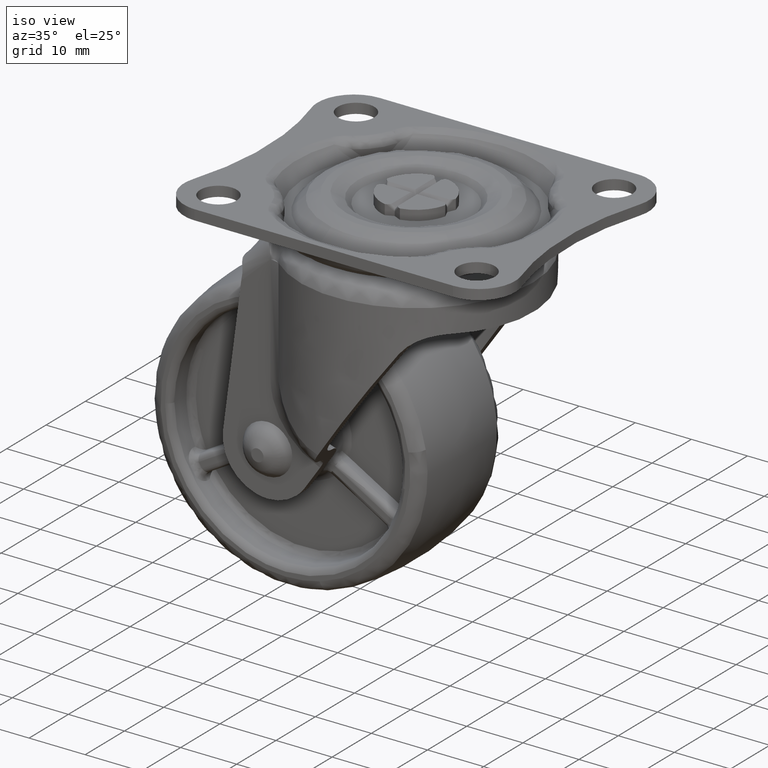
[diagram: clean part render]
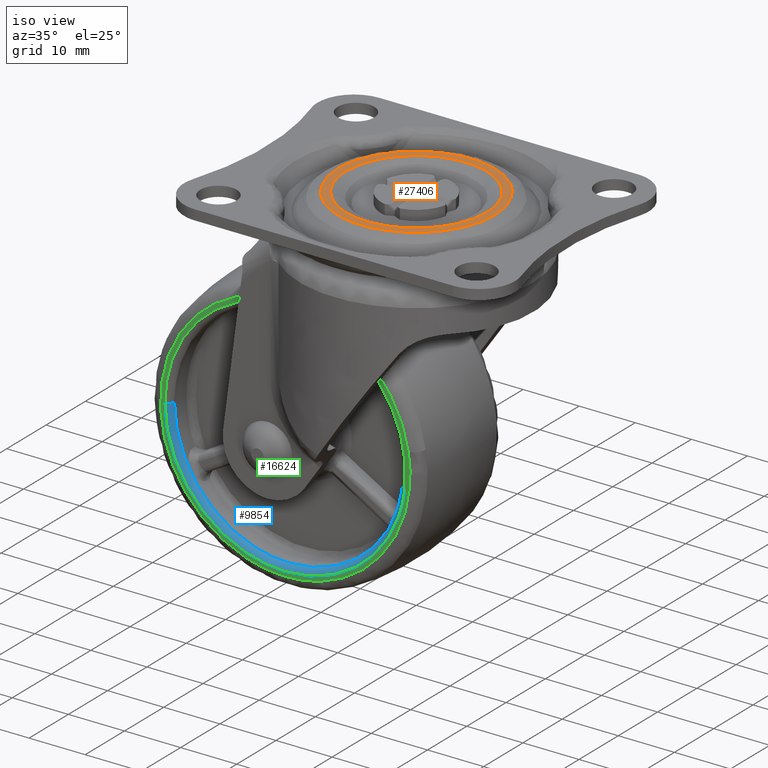
[diagram: same view with three faces highlighted in distinct colors, each labeled with its STEP entity id]
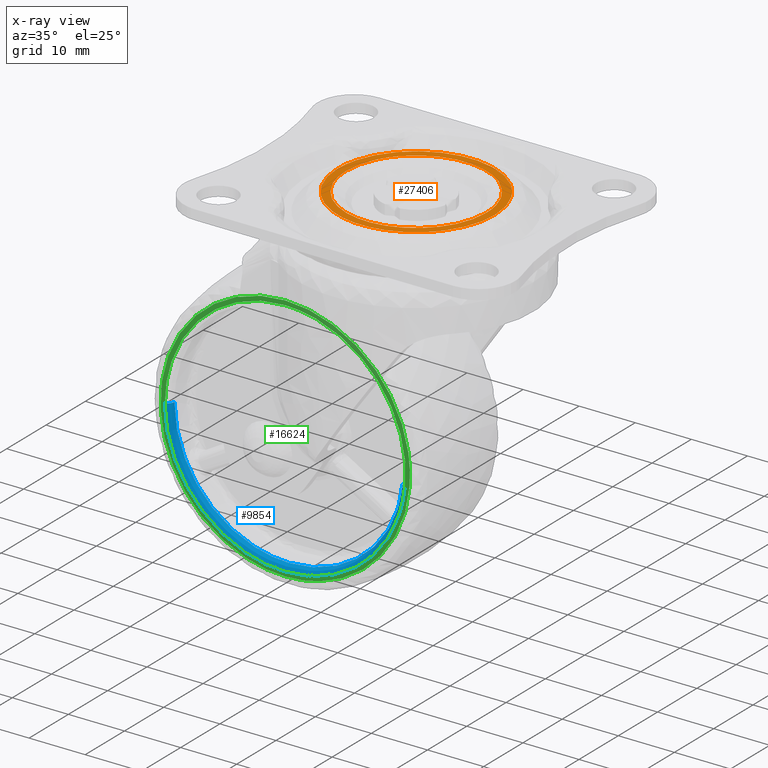
[diagram: x-ray of the same camera — body ghosted, the three highlighted faces saturated]
A machine part, iso view with three faces highlighted in distinct colors.
The next image is the same camera in x-ray (body ghosted, the three faces saturated) — at least one of them is partly hidden behind the body in this view.
Their STEP definitions:

[orange] entity #27406 — the highlighted face is a freeform B-spline surface patch.
#20250=CARTESIAN_POINT('',(-14.007359312880700,0.0,0.0));
#20251=VERTEX_POINT('',#20250);
#20252=CARTESIAN_POINT('',(11.036504954898600,-8.625640458779156,-5.326172E-016));
#20253=VERTEX_POINT('',#20252);
#20254=CARTESIAN_POINT('',(-14.007359312880700,0.0,0.0));
#20255=CARTESIAN_POINT('',(-14.007359312880700,-14.007359312880700,0.0));
#20256=CARTESIAN_POINT('',(0.0,-14.007359312880700,0.0));
#20257=CARTESIAN_POINT('',(6.830393320163392,-14.007359312880697,0.0));
#20258=CARTESIAN_POINT('',(11.036504954898600,-8.625640458779156,-5.326172E-016));
#20266=(BOUNDED_CURVE()B_SPLINE_CURVE(2,(#20254,#20255,#20256,#20257,#20258),.UNSPECIFIED.,.F.,.U.)B_SPLINE_CURVE_WITH_KNOTS((3,2,3),(0.0,0.250000000000000,0.393432082114475),.UNSPECIFIED.)CURVE()GEOMETRIC_REPRESENTATION_ITEM()RATIONAL_B_SPLINE_CURVE((1.0,0.707106781186548,1.0,0.831958863153504,0.856737647417219))REPRESENTATION_ITEM(''));
#20267=EDGE_CURVE('',#20251,#20253,#20266,.T.);
#20269=CARTESIAN_POINT('',(9.842270599605191,9.966735896073367,-5.096540E-016));
#20270=VERTEX_POINT('',#20269);
#20271=CARTESIAN_POINT('',(9.842270599605191,9.966735896073367,-5.096540E-016));
#20272=CARTESIAN_POINT('',(5.750549479752312,14.007359312880700,0.0));
#20273=CARTESIAN_POINT('',(0.0,14.007359312880700,0.0));
#20274=CARTESIAN_POINT('',(-14.007359312880700,14.007359312880700,0.0));
#20275=CARTESIAN_POINT('',(-14.007359312880700,0.0,0.0));
#20283=(BOUNDED_CURVE()B_SPLINE_CURVE(2,(#20271,#20272,#20273,#20274,#20275),.UNSPECIFIED.,.F.,.U.)B_SPLINE_CURVE_WITH_KNOTS((3,2,3),(0.625948062568013,0.750000000000000,1.0),.UNSPECIFIED.)CURVE()GEOMETRIC_REPRESENTATION_ITEM()RATIONAL_B_SPLINE_CURVE((0.853561814883004,0.854664114982001,1.0,0.707106781186548,1.0))REPRESENTATION_ITEM(''));
#20284=EDGE_CURVE('',#20270,#20251,#20283,.T.);
#20336=CARTESIAN_POINT('',(14.007359312880700,0.0,0.0));
#20337=VERTEX_POINT('',#20336);
#20338=CARTESIAN_POINT('',(11.036504954898600,-8.625640458779156,-5.326172E-016));
#20339=CARTESIAN_POINT('',(14.007359312880702,-4.824432999405993,0.0));
#20340=CARTESIAN_POINT('',(14.007359312880700,0.0,0.0));
#20348=(BOUNDED_CURVE()B_SPLINE_CURVE(2,(#20338,#20339,#20340),.UNSPECIFIED.,.F.,.U.)B_SPLINE_CURVE_WITH_KNOTS((3,3),(0.393432082114475,0.500000000000000),.UNSPECIFIED.)CURVE()GEOMETRIC_REPRESENTATION_ITEM()RATIONAL_B_SPLINE_CURVE((0.856737647417219,0.875147918033044,1.0))REPRESENTATION_ITEM(''));
#20349=EDGE_CURVE('',#20253,#20337,#20348,.T.);
#20355=CARTESIAN_POINT('',(14.007359312880700,0.0,0.0));
#20356=CARTESIAN_POINT('',(14.007359312880697,5.853661099694910,0.0));
#20357=CARTESIAN_POINT('',(9.842270599605191,9.966735896073367,-5.096540E-016));
#20365=(BOUNDED_CURVE()B_SPLINE_CURVE(2,(#20355,#20356,#20357),.UNSPECIFIED.,.F.,.U.)B_SPLINE_CURVE_WITH_KNOTS((3,3),(0.500000000000000,0.625948062568013),.UNSPECIFIED.)CURVE()GEOMETRIC_REPRESENTATION_ITEM()RATIONAL_B_SPLINE_CURVE((1.0,0.852442666204546,0.853561814883004))REPRESENTATION_ITEM(''));
#20366=EDGE_CURVE('',#20337,#20270,#20365,.T.);
#20406=CARTESIAN_POINT('',(7.723675670354493,9.882441218438832,-4.714846E-016));
#20407=VERTEX_POINT('',#20406);
#20408=CARTESIAN_POINT('',(12.542639687119300,0.0,0.0));
#20409=VERTEX_POINT('',#20408);
#20410=CARTESIAN_POINT('',(7.723675670354493,9.882441218438832,-4.714846E-016));
#20411=CARTESIAN_POINT('',(12.542639687119301,6.116153689051350,0.0));
#20412=CARTESIAN_POINT('',(12.542639687119300,0.0,0.0));
#20420=(BOUNDED_CURVE()B_SPLINE_CURVE(2,(#20410,#20411,#20412),.UNSPECIFIED.,.F.,.U.)B_SPLINE_CURVE_WITH_KNOTS((3,3),(0.356567917886601,0.500000000000000),.UNSPECIFIED.)CURVE()GEOMETRIC_REPRESENTATION_ITEM()RATIONAL_B_SPLINE_CURVE((0.856737647416847,0.831958863154765,1.0))REPRESENTATION_ITEM(''));
#20421=EDGE_CURVE('',#20407,#20409,#20420,.T.);
#20441=CARTESIAN_POINT('',(-8.924535623545339,8.813085397138408,-5.113113E-016));
#20442=VERTEX_POINT('',#20441);
#20456=CARTESIAN_POINT('',(-12.542639687119300,0.0,0.0));
#20457=VERTEX_POINT('',#20456);
#20458=CARTESIAN_POINT('',(-12.542639687119300,0.0,0.0));
#20459=CARTESIAN_POINT('',(-12.542639687119300,5.149226811169228,0.0));
#20460=CARTESIAN_POINT('',(-8.924535623545339,8.813085397138408,-5.113113E-016));
#20468=(BOUNDED_CURVE()B_SPLINE_CURVE(2,(#20458,#20459,#20460),.UNSPECIFIED.,.F.,.U.)B_SPLINE_CURVE_WITH_KNOTS((3,3),(0.0,0.124051937432107),.UNSPECIFIED.)CURVE()GEOMETRIC_REPRESENTATION_ITEM()RATIONAL_B_SPLINE_CURVE((1.0,0.854664114981861,0.853561814883002))REPRESENTATION_ITEM(''));
#20469=EDGE_CURVE('',#20457,#20442,#20468,.T.);
#20471=CARTESIAN_POINT('',(12.542639687119300,0.0,0.0));
#20472=CARTESIAN_POINT('',(12.542639687119300,-12.542639687119300,0.0));
#20473=CARTESIAN_POINT('',(0.0,-12.542639687119300,0.0));
#20474=CARTESIAN_POINT('',(-12.542639687119300,-12.542639687119300,0.0));
#20475=CARTESIAN_POINT('',(-12.542639687119300,0.0,0.0));
#20483=(BOUNDED_CURVE()B_SPLINE_CURVE(2,(#20471,#20472,#20473,#20474,#20475),.UNSPECIFIED.,.F.,.U.)B_SPLINE_CURVE_WITH_KNOTS((3,2,3),(0.500000000000000,0.750000000000000,1.0),.UNSPECIFIED.)CURVE()GEOMETRIC_REPRESENTATION_ITEM()RATIONAL_B_SPLINE_CURVE((1.0,0.707106781186548,1.0,0.707106781186548,1.0))REPRESENTATION_ITEM(''));
#20484=EDGE_CURVE('',#20409,#20457,#20483,.T.);
#20506=CARTESIAN_POINT('',(-8.924535623545339,8.813085397138408,-5.113113E-016));
#20507=CARTESIAN_POINT('',(-5.241556269380681,12.542639687119298,0.0));
#20508=CARTESIAN_POINT('',(0.0,12.542639687119300,0.0));
#20509=CARTESIAN_POINT('',(4.319952351850633,12.542639687119305,0.0));
#20510=CARTESIAN_POINT('',(7.723675670354493,9.882441218438832,-4.714846E-016));
#20518=(BOUNDED_CURVE()B_SPLINE_CURVE(2,(#20506,#20507,#20508,#20509,#20510),.UNSPECIFIED.,.F.,.U.)B_SPLINE_CURVE_WITH_KNOTS((3,2,3),(0.124051937432107,0.250000000000000,0.356567917886601),.UNSPECIFIED.)CURVE()GEOMETRIC_REPRESENTATION_ITEM()RATIONAL_B_SPLINE_CURVE((0.853561814883002,0.852442666204687,1.0,0.875147918031783,0.856737647416847))REPRESENTATION_ITEM(''));
#20519=EDGE_CURVE('',#20442,#20407,#20518,.T.);
#27389=CARTESIAN_POINT('',(-15.406694716921660,15.406565031206160,0.0));
#27390=CARTESIAN_POINT('',(15.406695217863859,15.406565031206160,0.0));
#27391=CARTESIAN_POINT('',(-15.406694716921660,-15.406675793393561,0.0));
#27392=CARTESIAN_POINT('',(15.406695217863859,-15.406675793393561,0.0));
#27393=B_SPLINE_SURFACE_WITH_KNOTS('',1,1,((#27389,#27391),(#27390,#27392)),.UNSPECIFIED.,.F.,.F.,.U.,(2,2),(2,2),(0.0,30.813389934785519),(0.0,30.813240824599720),.UNSPECIFIED.);
#27394=ORIENTED_EDGE('',*,*,#20349,.T.);
#27395=ORIENTED_EDGE('',*,*,#20366,.T.);
#27396=ORIENTED_EDGE('',*,*,#20284,.T.);
#27397=ORIENTED_EDGE('',*,*,#20267,.T.);
#27398=EDGE_LOOP('',(#27394,#27395,#27396,#27397));
#27399=FACE_OUTER_BOUND('',#27398,.T.);
#27400=ORIENTED_EDGE('',*,*,#20484,.T.);
#27401=ORIENTED_EDGE('',*,*,#20469,.T.);
#27402=ORIENTED_EDGE('',*,*,#20519,.T.);
#27403=ORIENTED_EDGE('',*,*,#20421,.T.);
#27404=EDGE_LOOP('',(#27400,#27401,#27402,#27403));
#27405=FACE_BOUND('',#27404,.T.);
#27406=ADVANCED_FACE('',(#27399,#27405),#27393,.F.);

[blue] entity #9854 — the highlighted face is a freeform B-spline surface patch.
#6905=CARTESIAN_POINT('',(-20.450001000000000,-9.500000002797471,1.775593E-015));
#6906=VERTEX_POINT('',#6905);
#6920=CARTESIAN_POINT('',(0.0,-9.500000000000000,-20.450001000000000));
#6921=VERTEX_POINT('',#6920);
#6922=CARTESIAN_POINT('',(-20.450001000000000,-9.500000002797471,1.775593E-015));
#6923=CARTESIAN_POINT('',(-20.450001000000004,-9.500000000000000,-20.450001000000004));
#6924=CARTESIAN_POINT('',(0.0,-9.500000000000000,-20.450001000000000));
#6932=(BOUNDED_CURVE()B_SPLINE_CURVE(2,(#6922,#6923,#6924),.UNSPECIFIED.,.F.,.U.)B_SPLINE_CURVE_WITH_KNOTS((3,3),(0.750000000000000,1.0),.UNSPECIFIED.)CURVE()GEOMETRIC_REPRESENTATION_ITEM()RATIONAL_B_SPLINE_CURVE((1.0,0.707106781186547,1.0))REPRESENTATION_ITEM(''));
#6933=EDGE_CURVE('',#6906,#6921,#6932,.T.);
#6935=CARTESIAN_POINT('',(20.313224006459929,-9.500000002786987,-2.361243605259952));
#6936=VERTEX_POINT('',#6935);
#6937=CARTESIAN_POINT('',(0.0,-9.500000000000000,-20.450001000000000));
#6938=CARTESIAN_POINT('',(18.210556172299707,-9.499999999999998,-20.450001000000000));
#6939=CARTESIAN_POINT('',(20.313224006459929,-9.500000002786987,-2.361243605259952));
#6947=(BOUNDED_CURVE()B_SPLINE_CURVE(2,(#6937,#6938,#6939),.UNSPECIFIED.,.F.,.U.)B_SPLINE_CURVE_WITH_KNOTS((3,3),(0.0,0.229999999999050),.UNSPECIFIED.)CURVE()GEOMETRIC_REPRESENTATION_ITEM()RATIONAL_B_SPLINE_CURVE((1.0,0.730538238692737,0.956886118188789))REPRESENTATION_ITEM(''));
#6948=EDGE_CURVE('',#6921,#6936,#6947,.T.);
#9730=CARTESIAN_POINT('',(21.306535645217171,-10.500000000000000,-2.476707834554091));
#9731=VERTEX_POINT('',#9730);
#9749=CARTESIAN_POINT('',(-21.450000997091809,-10.500000000000000,1.775626E-015));
#9750=VERTEX_POINT('',#9749);
#9764=CARTESIAN_POINT('',(-21.450000997091813,-10.500000000000000,1.775626E-015));
#9765=CARTESIAN_POINT('',(-20.450001005594945,-10.499999994183634,1.769682E-015));
#9766=CARTESIAN_POINT('',(-20.450001000000000,-9.500000002797471,1.775593E-015));
#9774=(BOUNDED_CURVE()B_SPLINE_CURVE(2,(#9764,#9765,#9766),.UNSPECIFIED.,.F.,.U.)B_SPLINE_CURVE_WITH_KNOTS((3,3),(-1.726807293572388,-0.285995339730375),.UNSPECIFIED.)CURVE()GEOMETRIC_REPRESENTATION_ITEM()RATIONAL_B_SPLINE_CURVE((0.882788774073280,0.622603439819938,0.878205637037286))REPRESENTATION_ITEM(''));
#9775=EDGE_CURVE('',#9750,#6906,#9774,.T.);
#9781=CARTESIAN_POINT('',(21.306535645217174,-10.500000000000000,-2.476707834554091));
#9782=CARTESIAN_POINT('',(20.313224012003246,-10.499999999937105,-2.361243605846488));
#9783=CARTESIAN_POINT('',(20.313224006459933,-9.500000002786987,-2.361243605259951));
#9791=(BOUNDED_CURVE()B_SPLINE_CURVE(2,(#9781,#9782,#9783),.UNSPECIFIED.,.F.,.U.)B_SPLINE_CURVE_WITH_KNOTS((3,3),(-1.726807299449346,-0.285995339709065),.UNSPECIFIED.)CURVE()GEOMETRIC_REPRESENTATION_ITEM()RATIONAL_B_SPLINE_CURVE((0.844728325236312,0.595760587700139,0.840342783004999))REPRESENTATION_ITEM(''));
#9792=EDGE_CURVE('',#9731,#6936,#9791,.T.);
#9797=CARTESIAN_POINT('',(-21.519352224661372,-10.497592305322154,1.317637E-015));
#9798=CARTESIAN_POINT('',(-21.519352224661372,-10.497592305322151,-21.519352224661358));
#9799=CARTESIAN_POINT('',(-2.635274E-015,-10.497592305322154,-21.519352224661372));
#9800=CARTESIAN_POINT('',(19.162804563232772,-10.497592305322152,-21.519352224661365));
#9801=CARTESIAN_POINT('',(21.375423023871779,-10.497592305322154,-2.484715420238383));
#9802=CARTESIAN_POINT('',(-20.372261629428667,-10.577336442433600,1.247400E-015));
#9803=CARTESIAN_POINT('',(-20.372261629428664,-10.577336442433596,-20.372261629428664));
#9804=CARTESIAN_POINT('',(-2.494800E-015,-10.577336442433600,-20.372261629428667));
#9805=CARTESIAN_POINT('',(18.141329908081413,-10.577336442433598,-20.372261629428671));
#9806=CARTESIAN_POINT('',(20.236004584886235,-10.577336442433602,-2.352267488691505));
#9807=CARTESIAN_POINT('',(-20.452434697207831,-9.430275746446746,1.252309E-015));
#9808=CARTESIAN_POINT('',(-20.452434697207821,-9.430275746446750,-20.452434697207821));
#9809=CARTESIAN_POINT('',(-2.504618E-015,-9.430275746446746,-20.452434697207831));
#9810=CARTESIAN_POINT('',(18.212723359568585,-9.430275746446750,-20.452434697207824));
#9811=CARTESIAN_POINT('',(20.315641426228375,-9.430275746446746,-2.361524610175412));
#9819=(BOUNDED_SURFACE()B_SPLINE_SURFACE(2,2,((#9797,#9802,#9807),(#9798,#9803,#9808),(#9799,#9804,#9809),(#9800,#9805,#9810),(#9801,#9806,#9811)),.UNSPECIFIED.,.F.,.F.,.U.)B_SPLINE_SURFACE_WITH_KNOTS((3,2,3),(3,3),(0.0,35.654430179753490,68.456505945126693),(0.0,1.822371195840735),.UNSPECIFIED.)GEOMETRIC_REPRESENTATION_ITEM()RATIONAL_B_SPLINE_SURFACE(((0.910068454623733,0.595552818763237,0.905027202754720),(0.643515575608403,0.421119436702248,0.639950872226155),(0.910068454623733,0.595552818763237,0.905027202754720),(0.664839805929630,0.435074107267127,0.661156978668440),(0.870831870832676,0.569876224923859,0.866007966900915)))REPRESENTATION_ITEM('')SURFACE());
#9820=CARTESIAN_POINT('',(0.0,-10.500000000000000,-21.450001000000000));
#9821=VERTEX_POINT('',#9820);
#9822=CARTESIAN_POINT('',(0.0,-10.500000000000000,-21.450001000000000));
#9823=CARTESIAN_POINT('',(19.101047873179542,-10.500000000000000,-21.450001000000000));
#9824=CARTESIAN_POINT('',(21.306535645217171,-10.500000000000002,-2.476707834554091));
#9832=(BOUNDED_CURVE()B_SPLINE_CURVE(2,(#9822,#9823,#9824),.UNSPECIFIED.,.F.,.U.)B_SPLINE_CURVE_WITH_KNOTS((3,3),(0.0,0.229999999999559),.UNSPECIFIED.)CURVE()GEOMETRIC_REPRESENTATION_ITEM()RATIONAL_B_SPLINE_CURVE((1.0,0.730538238692140,0.956886118189792))REPRESENTATION_ITEM(''));
#9833=EDGE_CURVE('',#9821,#9731,#9832,.T.);
#9834=ORIENTED_EDGE('',*,*,#9833,.T.);
#9835=ORIENTED_EDGE('',*,*,#9792,.T.);
#9836=ORIENTED_EDGE('',*,*,#6948,.F.);
#9837=ORIENTED_EDGE('',*,*,#6933,.F.);
#9838=ORIENTED_EDGE('',*,*,#9775,.F.);
#9839=CARTESIAN_POINT('',(-21.450000997091809,-10.500000000000000,1.775626E-015));
#9840=CARTESIAN_POINT('',(-21.450001000000007,-10.500000000000000,-21.450001000000007));
#9841=CARTESIAN_POINT('',(0.0,-10.500000000000000,-21.450001000000000));
#9849=(BOUNDED_CURVE()B_SPLINE_CURVE(2,(#9839,#9840,#9841),.UNSPECIFIED.,.F.,.U.)B_SPLINE_CURVE_WITH_KNOTS((3,3),(0.750000000000000,1.0),.UNSPECIFIED.)CURVE()GEOMETRIC_REPRESENTATION_ITEM()RATIONAL_B_SPLINE_CURVE((1.0,0.707106781186547,1.0))REPRESENTATION_ITEM(''));
#9850=EDGE_CURVE('',#9750,#9821,#9849,.T.);
#9851=ORIENTED_EDGE('',*,*,#9850,.T.);
#9852=EDGE_LOOP('',(#9834,#9835,#9836,#9837,#9838,#9851));
#9853=FACE_OUTER_BOUND('',#9852,.T.);
#9854=ADVANCED_FACE('',(#9853),#9819,.T.);

[green] entity #16624 — the highlighted face is a freeform B-spline surface patch.
#9508=CARTESIAN_POINT('',(21.945280715864261,-10.499999999999490,3.617278898494536));
#9509=VERTEX_POINT('',#9508);
#9523=CARTESIAN_POINT('',(6.126980159587282,-10.499999999999480,-21.380836442855031));
#9524=VERTEX_POINT('',#9523);
#9525=CARTESIAN_POINT('',(6.126980159587283,-10.499999999999478,-21.380836442855024));
#9526=CARTESIAN_POINT('',(22.241404000000202,-10.500000000000000,-16.763021049104243));
#9527=CARTESIAN_POINT('',(22.241404000000198,-10.500000000000000,1.224606E-015));
#9528=CARTESIAN_POINT('',(22.241404000000202,-10.499999999999998,1.820760300761484));
#9529=CARTESIAN_POINT('',(21.945280715864261,-10.499999999999488,3.617278898494536));
#9537=(BOUNDED_CURVE()B_SPLINE_CURVE(2,(#9525,#9526,#9527,#9528,#9529),.UNSPECIFIED.,.F.,.U.)B_SPLINE_CURVE_WITH_KNOTS((3,2,3),(0.046928272039896,0.250000000000000,0.277993891206352),.UNSPECIFIED.)CURVE()GEOMETRIC_REPRESENTATION_ITEM()RATIONAL_B_SPLINE_CURVE((0.910681108895136,0.762086671791022,1.0,0.967203116389832,0.941751131913187))REPRESENTATION_ITEM(''));
#9538=EDGE_CURVE('',#9524,#9509,#9537,.T.);
#9607=CARTESIAN_POINT('',(0.0,-10.500000000000000,-22.241404000000198));
#9608=VERTEX_POINT('',#9607);
#9609=CARTESIAN_POINT('',(0.0,-10.500000000000000,-22.241404000000198));
#9610=CARTESIAN_POINT('',(3.123925768017133,-10.500000000000000,-22.241404000000205));
#9611=CARTESIAN_POINT('',(6.126980159587283,-10.499999999999478,-21.380836442855024));
#9619=(BOUNDED_CURVE()B_SPLINE_CURVE(2,(#9609,#9610,#9611),.UNSPECIFIED.,.F.,.U.)B_SPLINE_CURVE_WITH_KNOTS((3,3),(0.0,0.046928272039896),.UNSPECIFIED.)CURVE()GEOMETRIC_REPRESENTATION_ITEM()RATIONAL_B_SPLINE_CURVE((1.0,0.945020109395526,0.910681108895136))REPRESENTATION_ITEM(''));
#9620=EDGE_CURVE('',#9608,#9524,#9619,.T.);
#9622=CARTESIAN_POINT('',(0.0,-10.500000000000000,22.241404000000198));
#9623=VERTEX_POINT('',#9622);
#9624=CARTESIAN_POINT('',(0.0,-10.500000000000000,22.241404000000198));
#9625=CARTESIAN_POINT('',(-22.241404000000209,-10.500000000000000,22.241404000000209));
#9626=CARTESIAN_POINT('',(-22.241404000000198,-10.500000000000000,1.224606E-015));
#9627=CARTESIAN_POINT('',(-22.241404000000209,-10.500000000000000,-22.241404000000209));
#9628=CARTESIAN_POINT('',(0.0,-10.500000000000000,-22.241404000000198));
#9636=(BOUNDED_CURVE()B_SPLINE_CURVE(2,(#9624,#9625,#9626,#9627,#9628),.UNSPECIFIED.,.F.,.U.)B_SPLINE_CURVE_WITH_KNOTS((3,2,3),(0.500000000000000,0.750000000000000,1.0),.UNSPECIFIED.)CURVE()GEOMETRIC_REPRESENTATION_ITEM()RATIONAL_B_SPLINE_CURVE((1.0,0.707106781186547,1.0,0.707106781186547,1.0))REPRESENTATION_ITEM(''));
#9637=EDGE_CURVE('',#9623,#9608,#9636,.T.);
#9639=CARTESIAN_POINT('',(21.945280715864257,-10.499999999999488,3.617278898494537));
#9640=CARTESIAN_POINT('',(18.875433679939182,-10.500000000000002,22.241404000000209));
#9641=CARTESIAN_POINT('',(0.0,-10.500000000000000,22.241404000000198));
#9649=(BOUNDED_CURVE()B_SPLINE_CURVE(2,(#9639,#9640,#9641),.UNSPECIFIED.,.F.,.U.)B_SPLINE_CURVE_WITH_KNOTS((3,3),(0.277993891206352,0.500000000000000),.UNSPECIFIED.)CURVE()GEOMETRIC_REPRESENTATION_ITEM()RATIONAL_B_SPLINE_CURVE((0.941751131913187,0.739903664796716,1.0))REPRESENTATION_ITEM(''));
#9650=EDGE_CURVE('',#9509,#9623,#9649,.T.);
#9730=CARTESIAN_POINT('',(21.306535645217171,-10.500000000000000,-2.476707834554091));
#9731=VERTEX_POINT('',#9730);
#9732=CARTESIAN_POINT('',(0.0,-10.500000000000000,21.450001000000000));
#9733=VERTEX_POINT('',#9732);
#9734=CARTESIAN_POINT('',(21.306535645217171,-10.500000000000002,-2.476707834554091));
#9735=CARTESIAN_POINT('',(21.450001000000000,-10.500000000000004,-1.242509092103329));
#9736=CARTESIAN_POINT('',(21.450001000000000,-10.500000000000000,1.224606E-015));
#9737=CARTESIAN_POINT('',(21.450001000000007,-10.500000000000000,21.450001000000007));
#9738=CARTESIAN_POINT('',(0.0,-10.500000000000000,21.450001000000000));
#9746=(BOUNDED_CURVE()B_SPLINE_CURVE(2,(#9734,#9735,#9736,#9737,#9738),.UNSPECIFIED.,.F.,.U.)B_SPLINE_CURVE_WITH_KNOTS((3,2,3),(0.229999999999559,0.250000000000000,0.500000000000000),.UNSPECIFIED.)CURVE()GEOMETRIC_REPRESENTATION_ITEM()RATIONAL_B_SPLINE_CURVE((0.956886118189792,0.976568542494407,1.0,0.707106781186547,1.0))REPRESENTATION_ITEM(''));
#9747=EDGE_CURVE('',#9731,#9733,#9746,.T.);
#9749=CARTESIAN_POINT('',(-21.450000997091809,-10.500000000000000,1.775626E-015));
#9750=VERTEX_POINT('',#9749);
#9751=CARTESIAN_POINT('',(0.0,-10.500000000000000,21.450001000000000));
#9752=CARTESIAN_POINT('',(-21.450000999999894,-10.500000000000000,21.450001000000007));
#9753=CARTESIAN_POINT('',(-21.450000997091813,-10.500000000000002,1.775626E-015));
#9761=(BOUNDED_CURVE()B_SPLINE_CURVE(2,(#9751,#9752,#9753),.UNSPECIFIED.,.F.,.U.)B_SPLINE_CURVE_WITH_KNOTS((3,3),(0.500000000000000,0.749999999999999),.UNSPECIFIED.)CURVE()GEOMETRIC_REPRESENTATION_ITEM()RATIONAL_B_SPLINE_CURVE((1.0,0.707106781186548,0.999999999999998))REPRESENTATION_ITEM(''));
#9762=EDGE_CURVE('',#9733,#9750,#9761,.T.);
#9820=CARTESIAN_POINT('',(0.0,-10.500000000000000,-21.450001000000000));
#9821=VERTEX_POINT('',#9820);
#9822=CARTESIAN_POINT('',(0.0,-10.500000000000000,-21.450001000000000));
#9823=CARTESIAN_POINT('',(19.101047873179542,-10.500000000000000,-21.450001000000000));
#9824=CARTESIAN_POINT('',(21.306535645217171,-10.500000000000002,-2.476707834554091));
#9832=(BOUNDED_CURVE()B_SPLINE_CURVE(2,(#9822,#9823,#9824),.UNSPECIFIED.,.F.,.U.)B_SPLINE_CURVE_WITH_KNOTS((3,3),(0.0,0.229999999999559),.UNSPECIFIED.)CURVE()GEOMETRIC_REPRESENTATION_ITEM()RATIONAL_B_SPLINE_CURVE((1.0,0.730538238692140,0.956886118189792))REPRESENTATION_ITEM(''));
#9833=EDGE_CURVE('',#9821,#9731,#9832,.T.);
#9839=CARTESIAN_POINT('',(-21.450000997091809,-10.500000000000000,1.775626E-015));
#9840=CARTESIAN_POINT('',(-21.450001000000007,-10.500000000000000,-21.450001000000007));
#9841=CARTESIAN_POINT('',(0.0,-10.500000000000000,-21.450001000000000));
#9849=(BOUNDED_CURVE()B_SPLINE_CURVE(2,(#9839,#9840,#9841),.UNSPECIFIED.,.F.,.U.)B_SPLINE_CURVE_WITH_KNOTS((3,3),(0.750000000000000,1.0),.UNSPECIFIED.)CURVE()GEOMETRIC_REPRESENTATION_ITEM()RATIONAL_B_SPLINE_CURVE((1.0,0.707106781186547,1.0))REPRESENTATION_ITEM(''));
#9850=EDGE_CURVE('',#9750,#9821,#9849,.T.);
#16607=CARTESIAN_POINT('',(-24.463142504981569,-10.500000000000000,24.463319755811131));
#16608=CARTESIAN_POINT('',(-24.463142504981569,-10.500000000000000,-24.463321346640310));
#16609=CARTESIAN_POINT('',(24.459595529725501,-10.500000000000000,24.463319755811131));
#16610=CARTESIAN_POINT('',(24.459595529725501,-10.500000000000000,-24.463321346640310));
#16611=B_SPLINE_SURFACE_WITH_KNOTS('',1,1,((#16607,#16609),(#16608,#16610)),.UNSPECIFIED.,.F.,.F.,.U.,(2,2),(2,2),(0.0,48.926641102451441),(0.0,48.922738034707073),.UNSPECIFIED.);
#16612=ORIENTED_EDGE('',*,*,#9620,.T.);
#16613=ORIENTED_EDGE('',*,*,#9538,.T.);
#16614=ORIENTED_EDGE('',*,*,#9650,.T.);
#16615=ORIENTED_EDGE('',*,*,#9637,.T.);
#16616=EDGE_LOOP('',(#16612,#16613,#16614,#16615));
#16617=FACE_OUTER_BOUND('',#16616,.T.);
#16618=ORIENTED_EDGE('',*,*,#9762,.F.);
#16619=ORIENTED_EDGE('',*,*,#9747,.F.);
#16620=ORIENTED_EDGE('',*,*,#9833,.F.);
#16621=ORIENTED_EDGE('',*,*,#9850,.F.);
#16622=EDGE_LOOP('',(#16618,#16619,#16620,#16621));
#16623=FACE_BOUND('',#16622,.T.);
#16624=ADVANCED_FACE('',(#16617,#16623),#16611,.T.);